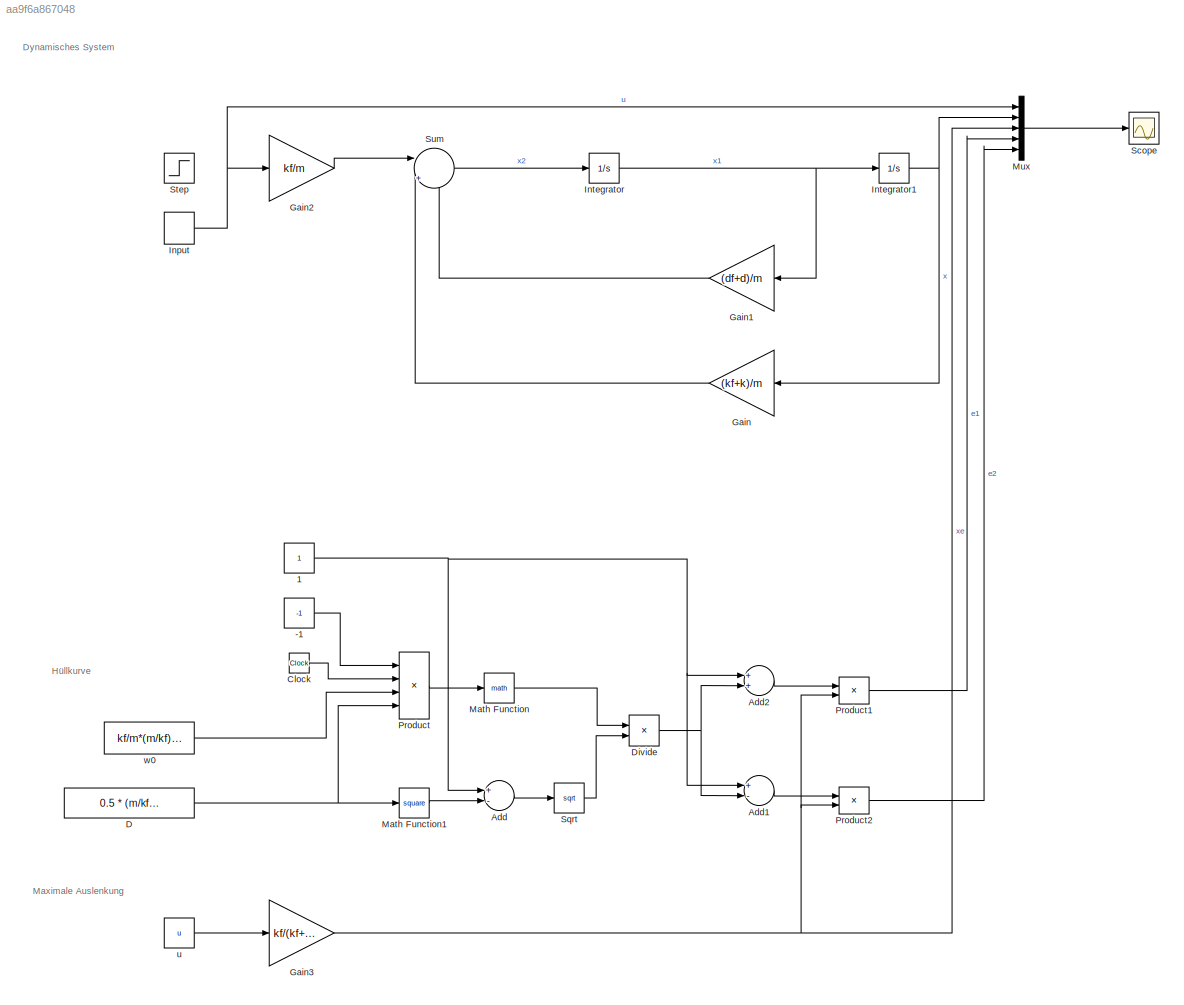
MODEL slx_aa9f6a867048
KIND model
BLOCK [Constant] -1
  Value = -1
BLOCK [Constant] 1
BLOCK [Sum] Add
  InputSameDT = off
  Inputs = +-
  OutDataTypeStr = Inherit: Inherit via internal rule
  Ports = [2, 1]
  SaturateOnIntegerOverflow = off
BLOCK [Sum] Add1
  InputSameDT = off
  Inputs = +-
  OutDataTypeStr = Inherit: Inherit via internal rule
  Ports = [2, 1]
  SaturateOnIntegerOverflow = off
BLOCK [Sum] Add2
  InputSameDT = off
  OutDataTypeStr = Inherit: Inherit via internal rule
  Ports = [2, 1]
  SaturateOnIntegerOverflow = off
BLOCK [Clock] Clock
BLOCK [Constant] D
  Value = 0.5 * (m/kf)^0.5 * (d+df)/m
BLOCK [Product] Divide
  InputSameDT = off
  Inputs = */
  OutDataTypeStr = Inherit: Inherit via internal rule
  Ports = [2, 1]
  RndMeth = Floor
  SaturateOnIntegerOverflow = off
BLOCK [Gain] Gain
  Gain = (kf+k)/m
  OutDataTypeStr = Inherit: Inherit via internal rule
  ParamDataTypeStr = Inherit: Inherit via internal rule
  SaturateOnIntegerOverflow = off
BLOCK [Gain] Gain1
  Gain = (df+d)/m
  OutDataTypeStr = Inherit: Inherit via internal rule
  ParamDataTypeStr = Inherit: Inherit via internal rule
  SaturateOnIntegerOverflow = off
BLOCK [Gain] Gain2
  Gain = kf/m
  OutDataTypeStr = Inherit: Inherit via internal rule
  ParamDataTypeStr = Inherit: Inherit via internal rule
  SaturateOnIntegerOverflow = off
BLOCK [Gain] Gain3
  Gain = kf/(kf+k)
  OutDataTypeStr = Inherit: Inherit via internal rule
  ParamDataTypeStr = Inherit: Inherit via internal rule
  SaturateOnIntegerOverflow = off
BLOCK [DiscretePulseGenerator] Input
  Amplitude = u
  Period = 40
  Ports = [0, 1]
  PulseType = Time based
  PulseWidth = 50
BLOCK [Integrator] Integrator
  Ports = [1, 1]
BLOCK [Integrator] Integrator1
  Ports = [1, 1]
BLOCK [Math] Math Function
  Ports = [1, 1]
BLOCK [Math] Math Function1
  Operator = square
  Ports = [1, 1]
BLOCK [Mux] Mux
  DisplayOption = bar
  Inputs = 5
  Ports = [5, 1]
BLOCK [Product] Product
  InputSameDT = off
  Inputs = 4
  OutDataTypeStr = Inherit: Inherit via internal rule
  Ports = [4, 1]
  RndMeth = Floor
  SaturateOnIntegerOverflow = off
BLOCK [Product] Product1
  InputSameDT = off
  OutDataTypeStr = Inherit: Inherit via internal rule
  Ports = [2, 1]
  RndMeth = Floor
  SaturateOnIntegerOverflow = off
BLOCK [Product] Product2
  InputSameDT = off
  OutDataTypeStr = Inherit: Inherit via internal rule
  Ports = [2, 1]
  RndMeth = Floor
  SaturateOnIntegerOverflow = off
BLOCK [Scope] Scope
  Floating = off
  LegendLocations = 0.9347      0.9077    0.053681     0.11544
  NumInputPorts = 1
  Ports = [1]
  ShowLegends = on
BLOCK [Sqrt] Sqrt
BLOCK [Step] Step
  SampleTime = 0
BLOCK [Sum] Sum
  IconShape = round
  InputSameDT = off
  Inputs = ||+--
  OutDataTypeStr = Inherit: Inherit via internal rule
  Ports = [3, 1]
  SaturateOnIntegerOverflow = off
BLOCK [Constant] u
  Value = u
BLOCK [Constant] w0
  Value = kf/m*(m/kf)^0.5
ANNOTATION (root): Dynamisches System
ANNOTATION (root): Hüllkurve
ANNOTATION (root): Maximale Auslenkung
LINE -1:1 -> Product:1
NET 1:1 -> Add1:1, Add2:1, Add:1
LINE Add1:1 -> Product2:1
LINE Add2:1 -> Product1:1
LINE Add:1 -> Sqrt:1
LINE Clock:1 -> Product:2
NET D:1 -> Math Function1:1, Product:4
NET Divide:1 -> Add1:2, Add2:2
LINE Gain1:1 -> Sum:3
LINE Gain2:1 -> Sum:1
NET Gain3:1 -> Mux:3, Product1:2, Product2:2
LINE Gain:1 -> Sum:2
NET Input:1 -> Gain2:1, Mux:1
NET Integrator1:1 -> Gain:1, Mux:2
NET Integrator:1 -> Gain1:1, Integrator1:1
LINE Math Function1:1 -> Add:2
LINE Math Function:1 -> Divide:1
LINE Mux:1 -> Scope:1
LINE Product1:1 -> Mux:4
LINE Product2:1 -> Mux:5
LINE Product:1 -> Math Function:1
LINE Sqrt:1 -> Divide:2
LINE Sum:1 -> Integrator:1
LINE u:1 -> Gain3:1
LINE w0:1 -> Product:3
note: NET lines group one-source signal fan-out (src -> all destinations, sorted); 1:1 wires keep LINE
